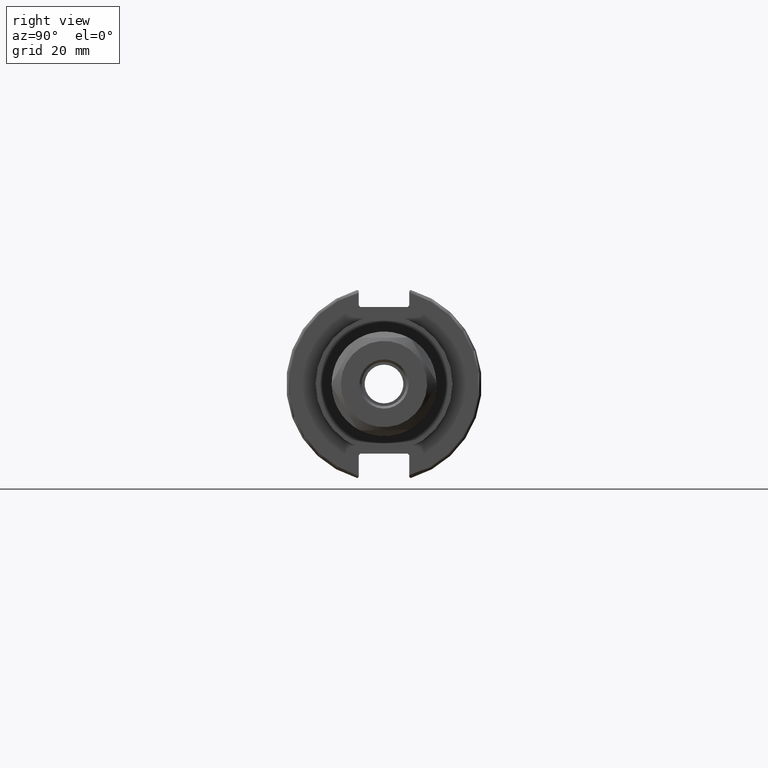
[diagram: clean part render]
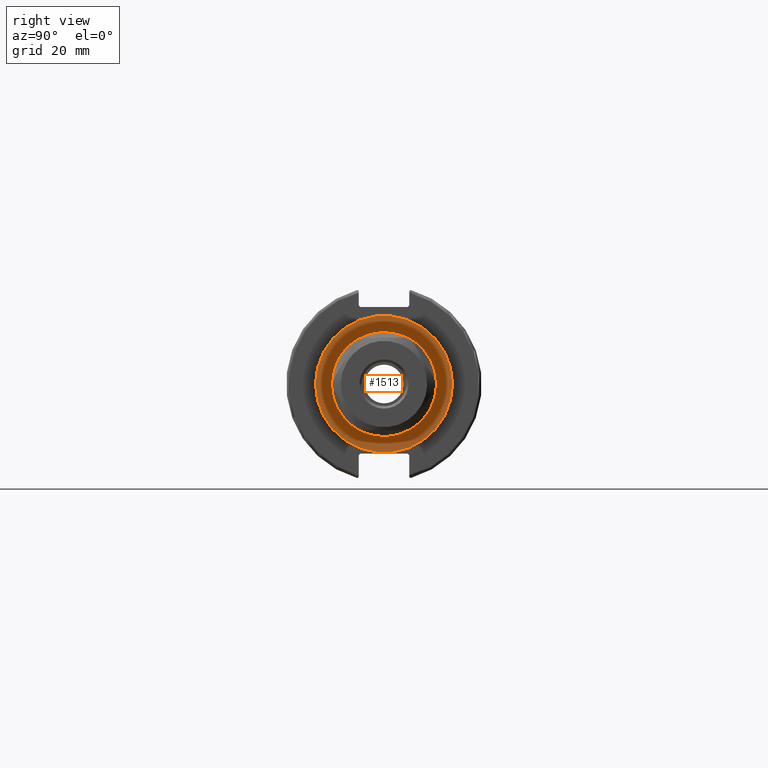
[diagram: same view with one face highlighted and labeled with its STEP entity id]
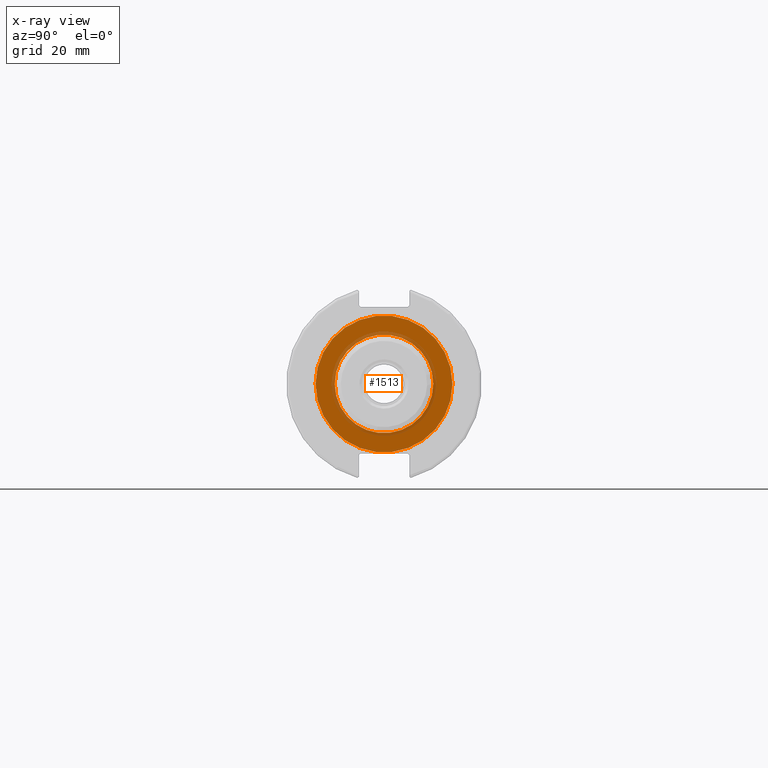
[diagram: x-ray of the same camera — body ghosted, the highlighted face saturated]
A machine part, right view. The second image highlights one B-rep face of the part: STEP entity #1513.
The next image is the same camera in x-ray: the body ghosted, the highlighted face saturated — about 15% of this face is hidden behind the body in this view.
In plain terms, the highlighted planar face has unit normal (1, 0, 0).
Its self-contained STEP definition (entity closure, byte-faithful):
#115=FACE_BOUND('',#294,.T.);
#131=PLANE('',#1690);
#200=FACE_OUTER_BOUND('',#293,.T.);
#293=EDGE_LOOP('',(#1068));
#294=EDGE_LOOP('',(#1069));
#601=CIRCLE('',#1688,22.225);
#603=CIRCLE('',#1691,16.);
#678=VERTEX_POINT('',#2344);
#680=VERTEX_POINT('',#2350);
#830=EDGE_CURVE('',#678,#678,#601,.T.);
#833=EDGE_CURVE('',#680,#680,#603,.T.);
#1068=ORIENTED_EDGE('',*,*,#830,.T.);
#1069=ORIENTED_EDGE('',*,*,#833,.F.);
#1513=ADVANCED_FACE('',(#200,#115),#131,.T.);
#1688=AXIS2_PLACEMENT_3D('',#2345,#1891,#1892);
#1690=AXIS2_PLACEMENT_3D('',#2349,#1896,#1897);
#1691=AXIS2_PLACEMENT_3D('',#2351,#1898,#1899);
#1891=DIRECTION('center_axis',(1.,0.,0.));
#1892=DIRECTION('ref_axis',(0.,0.,-1.));
#1896=DIRECTION('center_axis',(1.,0.,0.));
#1897=DIRECTION('ref_axis',(0.,0.,-1.));
#1898=DIRECTION('center_axis',(1.,0.,0.));
#1899=DIRECTION('ref_axis',(0.,0.,-1.));
#2344=CARTESIAN_POINT('',(35.,-22.225,-2.72177751110499E-15));
#2345=CARTESIAN_POINT('Origin',(35.,0.,0.));
#2349=CARTESIAN_POINT('Origin',(35.,16.,0.));
#2350=CARTESIAN_POINT('',(35.,-16.,-1.95943487863577E-15));
#2351=CARTESIAN_POINT('Origin',(35.,0.,0.));